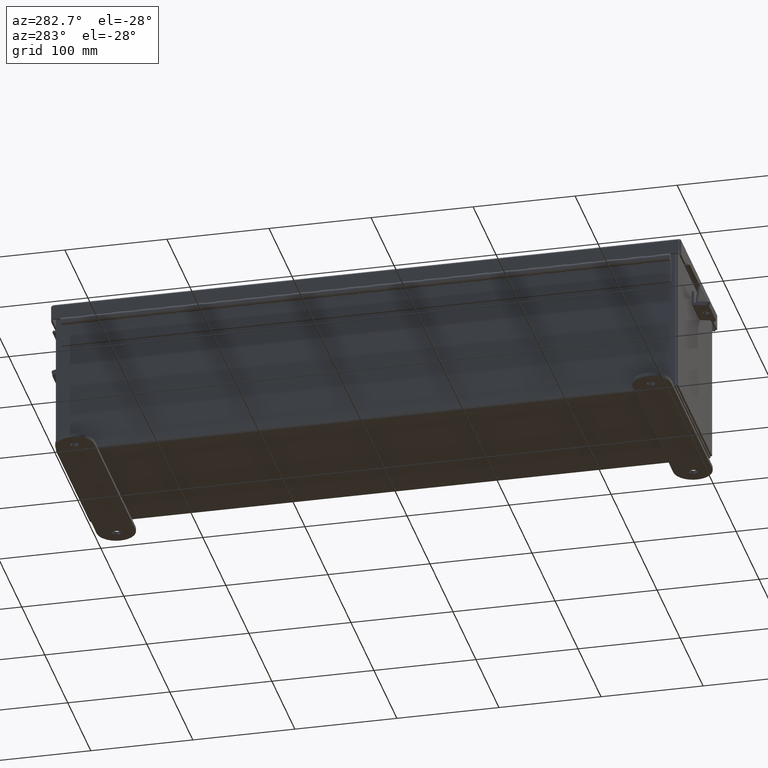
[diagram: clean part render]
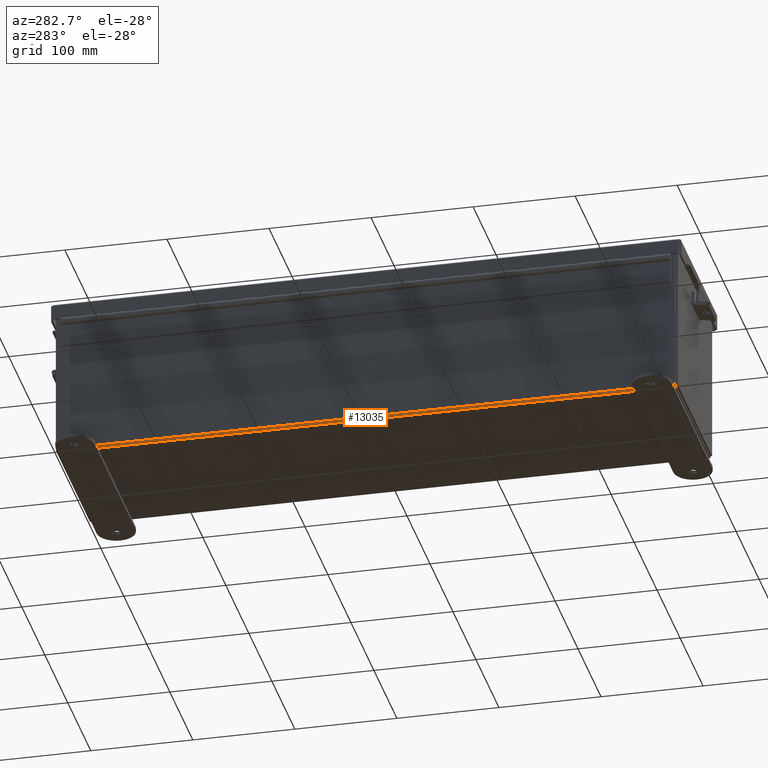
[diagram: same view with one face highlighted and labeled with its STEP entity id]
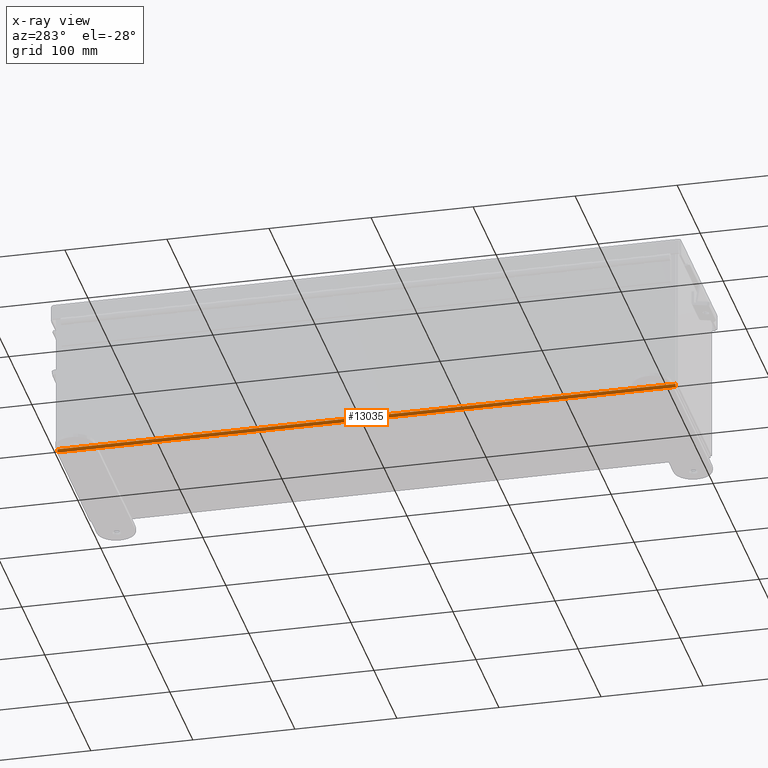
[diagram: x-ray of the same camera — body ghosted, the highlighted face saturated]
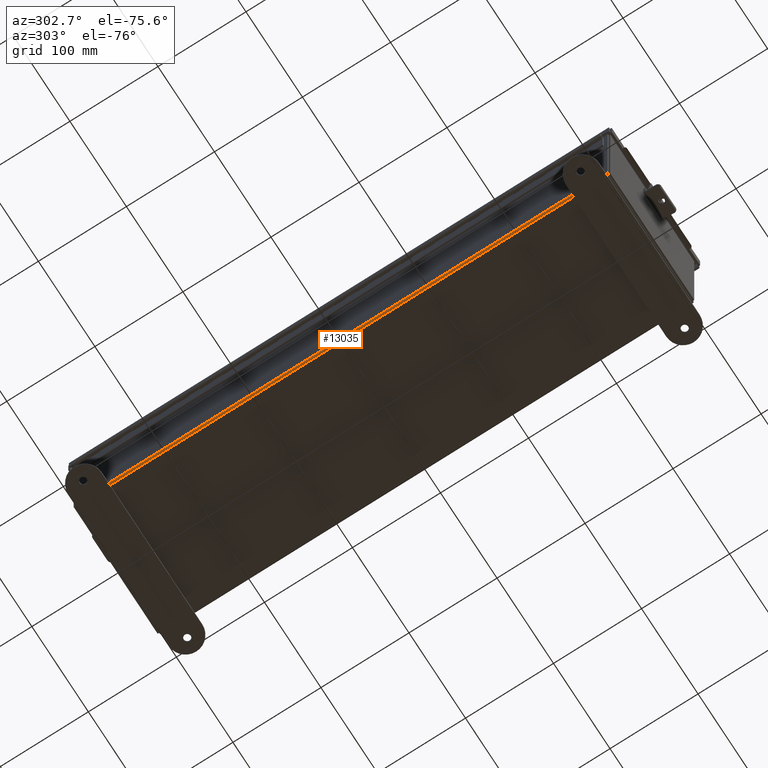
[diagram: same view with one face highlighted and labeled with its STEP entity id]
A machine part, auxiliary view. The second image highlights one B-rep face of the part: STEP entity #13035.
The next image is the same camera in x-ray: the body ghosted, the highlighted face saturated — about 0% of this face is hidden behind the body in this view.
A second angle (auxiliary view) of the same face is appended — the face is thin or edge-on in the first view.
In plain terms, the highlighted cylindrical surface (edge-blend (fillet) strip) has radius 2.2276 mm, axis along (0, -1, -0).
Its self-contained STEP definition (entity closure, byte-faithful):
#450 = CYLINDRICAL_SURFACE ( 'NONE', #3985, 0.08770000000000026400 ) ;
#594 = CARTESIAN_POINT ( 'NONE',  ( -2.912300000000000600, 11.92529999999999600, 0.01300000000000032000 ) ) ;
#1006 = VECTOR ( 'NONE', #12978, 39.37007874015748100 ) ;
#2351 = DIRECTION ( 'NONE',  ( 0.0000000000000000000, 0.0000000000000000000, -1.000000000000000000 ) ) ;
#2440 = CARTESIAN_POINT ( 'NONE',  ( -2.912300000000000600, -11.92530000000000000, -0.07470000000000173700 ) ) ;
#2556 = CARTESIAN_POINT ( 'NONE',  ( -2.912300000000000600, -11.92530000000000000, 0.01299999999999835700 ) ) ;
#3923 = VECTOR ( 'NONE', #3978, 39.37007874015748100 ) ;
#3978 = DIRECTION ( 'NONE',  ( -2.374631997337943600E-031, 1.000000000000000000, 6.872400678383597100E-017 ) ) ;
#3985 = AXIS2_PLACEMENT_3D ( 'NONE', #2556, #18310, #14852 ) ;
#4301 = EDGE_LOOP ( 'NONE', ( #14199, #12023, #14368, #17860 ) ) ;
#4597 = DIRECTION ( 'NONE',  ( 0.0000000000000000000, -1.000000000000000000, -8.208677865577646300E-017 ) ) ;
#5070 = EDGE_CURVE ( 'NONE', #10423, #14873, #13291, .T. ) ;
#5619 = AXIS2_PLACEMENT_3D ( 'NONE', #15156, #4597, #16902 ) ;
#5669 = LINE ( 'NONE', #2440, #1006 ) ;
#7161 = CARTESIAN_POINT ( 'NONE',  ( -2.912300000000000600, 11.92529999999999600, -0.07470000000000000300 ) ) ;
#7519 = CARTESIAN_POINT ( 'NONE',  ( -3.000000000000000900, 11.92529999999999600, 0.01299999999999984300 ) ) ;
#7944 = CIRCLE ( 'NONE', #9752, 0.08770000000000009700 ) ;
#9752 = AXIS2_PLACEMENT_3D ( 'NONE', #594, #12886, #2351 ) ;
#9771 = FACE_OUTER_BOUND ( 'NONE', #4301, .T. ) ;
#10202 = CARTESIAN_POINT ( 'NONE',  ( -3.000000000000000900, -11.92529999999999600, 0.01299999999999820400 ) ) ;
#10423 = VERTEX_POINT ( 'NONE', #10202 ) ;
#11542 = CARTESIAN_POINT ( 'NONE',  ( -3.000000000000000900, 11.92529999999999600, 0.01300000000000001300 ) ) ;
#12023 = ORIENTED_EDGE ( 'NONE', *, *, #19951, .F. ) ;
#12886 = DIRECTION ( 'NONE',  ( -0.0000000000000000000, 1.000000000000000000, 8.208677865577646300E-017 ) ) ;
#12978 = DIRECTION ( 'NONE',  ( -0.0000000000000000000, 1.000000000000000000, 8.208677865577646300E-017 ) ) ;
#13035 = ADVANCED_FACE ( 'NONE', ( #9771 ), #450, .T. ) ;
#13291 = LINE ( 'NONE', #7519, #3923 ) ;
#13362 = CARTESIAN_POINT ( 'NONE',  ( -2.912300000000000600, -11.92529999999999600, -0.07470000000000173700 ) ) ;
#14077 = CIRCLE ( 'NONE', #5619, 0.08770000000000009700 ) ;
#14199 = ORIENTED_EDGE ( 'NONE', *, *, #22469, .F. ) ;
#14368 = ORIENTED_EDGE ( 'NONE', *, *, #5070, .T. ) ;
#14578 = VERTEX_POINT ( 'NONE', #7161 ) ;
#14852 = DIRECTION ( 'NONE',  ( -1.000000000000000000, 0.0000000000000000000, -3.455694262224952200E-015 ) ) ;
#14873 = VERTEX_POINT ( 'NONE', #11542 ) ;
#15156 = CARTESIAN_POINT ( 'NONE',  ( -2.912300000000000600, -11.92529999999999600, 0.01299999999999835700 ) ) ;
#16902 = DIRECTION ( 'NONE',  ( 0.0000000000000000000, 0.0000000000000000000, -1.000000000000000000 ) ) ;
#17860 = ORIENTED_EDGE ( 'NONE', *, *, #20986, .F. ) ;
#18310 = DIRECTION ( 'NONE',  ( 0.0000000000000000000, -1.000000000000000000, -8.208677865577646300E-017 ) ) ;
#19951 = EDGE_CURVE ( 'NONE', #10423, #22617, #14077, .T. ) ;
#20986 = EDGE_CURVE ( 'NONE', #14578, #14873, #7944, .T. ) ;
#22469 = EDGE_CURVE ( 'NONE', #22617, #14578, #5669, .T. ) ;
#22617 = VERTEX_POINT ( 'NONE', #13362 ) ;